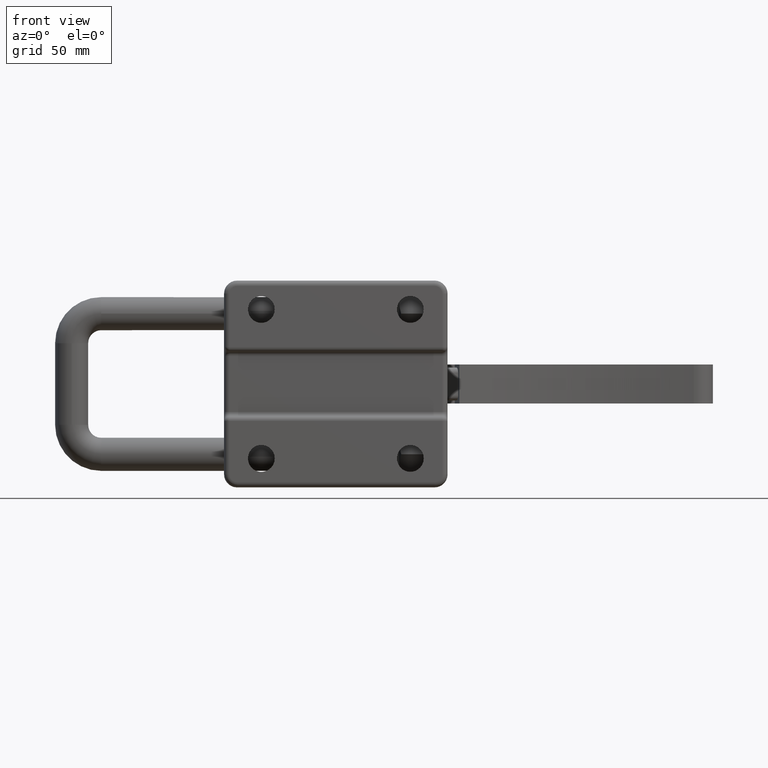
[diagram: clean part render]
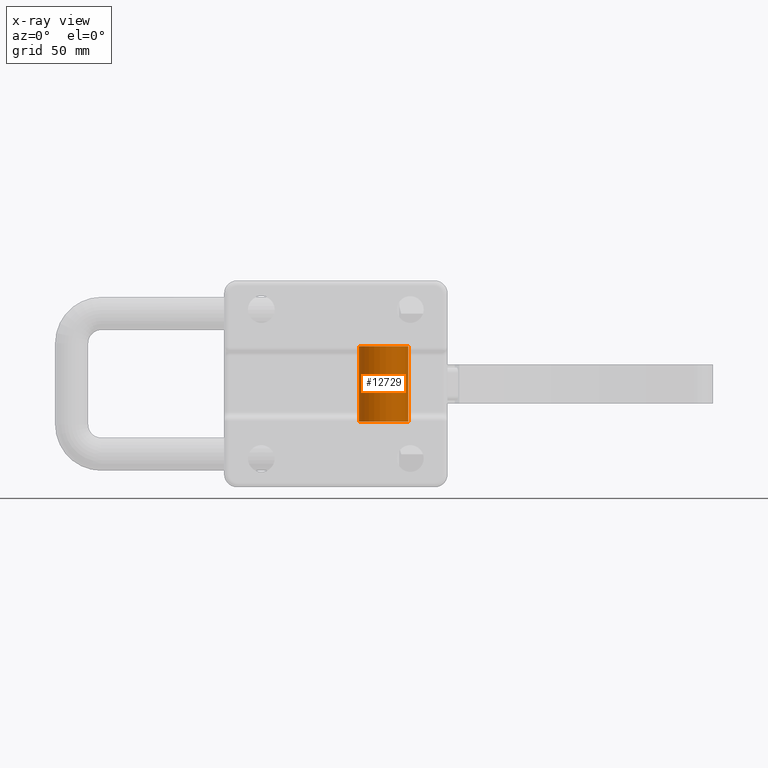
[diagram: x-ray — body ghosted, one internal face saturated and labeled with its STEP entity id]
A machine part, front view, then the same camera in x-ray: the body is ghosted and one INTERNAL B-rep face — a face not visible from any outside direction — is saturated and labeled: STEP entity #12729.
In plain terms, the highlighted cylindrical surface (edge-blend (fillet) strip) has radius 9.5 mm, axis along (0, 0, 1).
Its self-contained STEP definition (entity closure, byte-faithful):
#1138 = CARTESIAN_POINT ( 'NONE',  ( 18.33198863978726600, 27.41106460746969400, -14.49999999999999800 ) ) ;
#1230 = DIRECTION ( 'NONE',  ( 0.0000000000000000000, 0.0000000000000000000, 1.000000000000000000 ) ) ;
#1234 = CIRCLE ( 'NONE', #8113, 9.500000000000001800 ) ;
#1237 = ORIENTED_EDGE ( 'NONE', *, *, #7418, .F. ) ;
#1323 = AXIS2_PLACEMENT_3D ( 'NONE', #12394, #9420, #6405 ) ;
#1372 = ORIENTED_EDGE ( 'NONE', *, *, #12564, .F. ) ;
#1437 = VERTEX_POINT ( 'NONE', #7739 ) ;
#2140 = DIRECTION ( 'NONE',  ( 0.9995411118417111300, -0.03029134758038944500, 0.0000000000000000000 ) ) ;
#2228 = AXIS2_PLACEMENT_3D ( 'NONE', #1138, #8107, #2140 ) ;
#2258 = FACE_OUTER_BOUND ( 'NONE', #10072, .T. ) ;
#2626 = LINE ( 'NONE', #7767, #4946 ) ;
#3977 = CYLINDRICAL_SURFACE ( 'NONE', #1323, 9.500000000000001800 ) ;
#4138 = ORIENTED_EDGE ( 'NONE', *, *, #11070, .T. ) ;
#4207 = DIRECTION ( 'NONE',  ( 0.0000000000000000000, 0.0000000000000000000, 1.000000000000000000 ) ) ;
#4946 = VECTOR ( 'NONE', #8785, 1000.000000000000000 ) ;
#6155 = VERTEX_POINT ( 'NONE', #10549 ) ;
#6405 = DIRECTION ( 'NONE',  ( 0.9995411118417111300, -0.03029134758038944500, 0.0000000000000000000 ) ) ;
#6566 = VERTEX_POINT ( 'NONE', #11068 ) ;
#7181 = CARTESIAN_POINT ( 'NONE',  ( 18.33198863978726600, 27.41106460746969400, 14.50000000000000000 ) ) ;
#7238 = EDGE_CURVE ( 'NONE', #6566, #1437, #1234, .T. ) ;
#7418 = EDGE_CURVE ( 'NONE', #6155, #1437, #2626, .T. ) ;
#7739 = CARTESIAN_POINT ( 'NONE',  ( 27.82762920228352100, 27.12329680545599700, 14.50000000000000000 ) ) ;
#7767 = CARTESIAN_POINT ( 'NONE',  ( 27.82762920228352100, 27.12329680545599700, -14.49999999999999800 ) ) ;
#8107 = DIRECTION ( 'NONE',  ( 0.0000000000000000000, 0.0000000000000000000, 1.000000000000000000 ) ) ;
#8113 = AXIS2_PLACEMENT_3D ( 'NONE', #7181, #1230, #8205 ) ;
#8192 = ORIENTED_EDGE ( 'NONE', *, *, #7238, .T. ) ;
#8205 = DIRECTION ( 'NONE',  ( 0.9995411118417111300, -0.03029134758038944500, 0.0000000000000000000 ) ) ;
#8346 = VERTEX_POINT ( 'NONE', #8877 ) ;
#8785 = DIRECTION ( 'NONE',  ( 0.0000000000000000000, 0.0000000000000000000, 1.000000000000000000 ) ) ;
#8877 = CARTESIAN_POINT ( 'NONE',  ( 8.836348077291010100, 27.69883240948339400, -14.49999999999999800 ) ) ;
#9135 = CIRCLE ( 'NONE', #2228, 9.500000000000001800 ) ;
#9179 = CARTESIAN_POINT ( 'NONE',  ( 8.836348077291010100, 27.69883240948339400, -14.49999999999999800 ) ) ;
#9420 = DIRECTION ( 'NONE',  ( 0.0000000000000000000, 0.0000000000000000000, 1.000000000000000000 ) ) ;
#10072 = EDGE_LOOP ( 'NONE', ( #1372, #4138, #8192, #1237 ) ) ;
#10549 = CARTESIAN_POINT ( 'NONE',  ( 27.82762920228352100, 27.12329680545599700, -14.49999999999999800 ) ) ;
#10932 = VECTOR ( 'NONE', #4207, 1000.000000000000000 ) ;
#11068 = CARTESIAN_POINT ( 'NONE',  ( 8.836348077291010100, 27.69883240948339400, 14.50000000000000000 ) ) ;
#11070 = EDGE_CURVE ( 'NONE', #8346, #6566, #11250, .T. ) ;
#11250 = LINE ( 'NONE', #9179, #10932 ) ;
#12394 = CARTESIAN_POINT ( 'NONE',  ( 18.33198863978726600, 27.41106460746969400, -14.49999999999999800 ) ) ;
#12564 = EDGE_CURVE ( 'NONE', #8346, #6155, #9135, .T. ) ;
#12729 = ADVANCED_FACE ( 'NONE', ( #2258 ), #3977, .F. ) ;